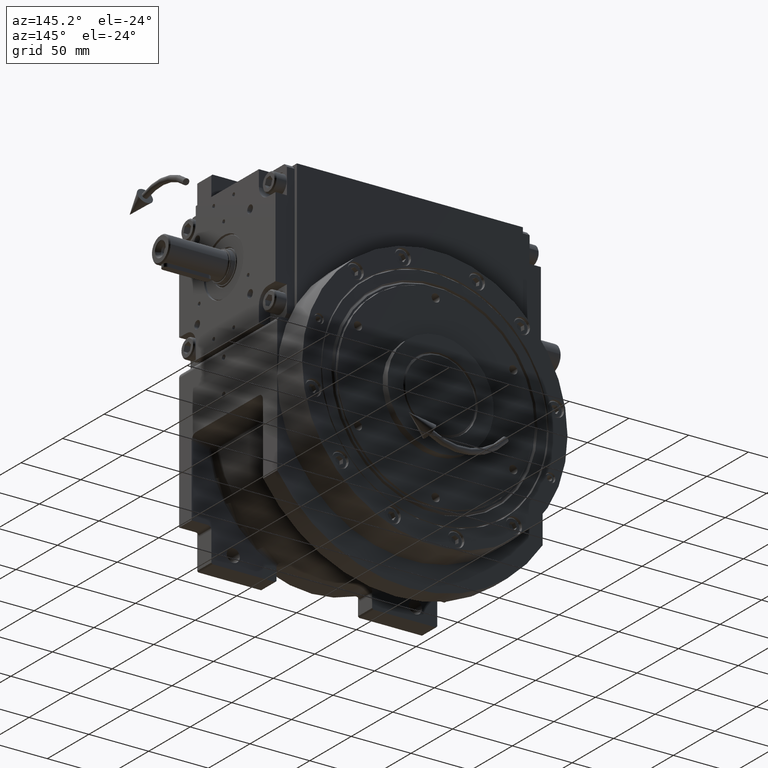
[diagram: clean part render]
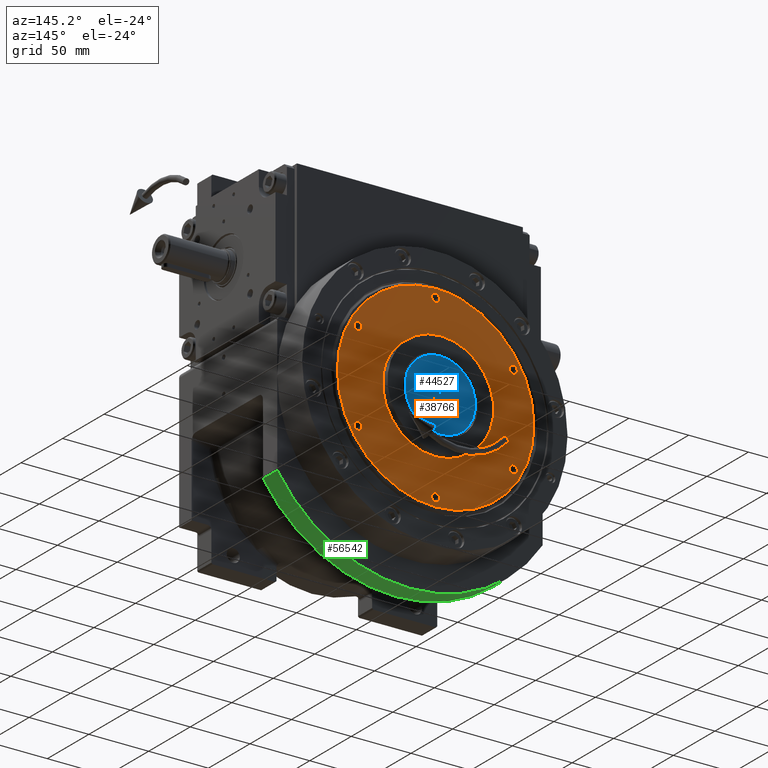
[diagram: same view with three faces highlighted in distinct colors, each labeled with its STEP entity id]
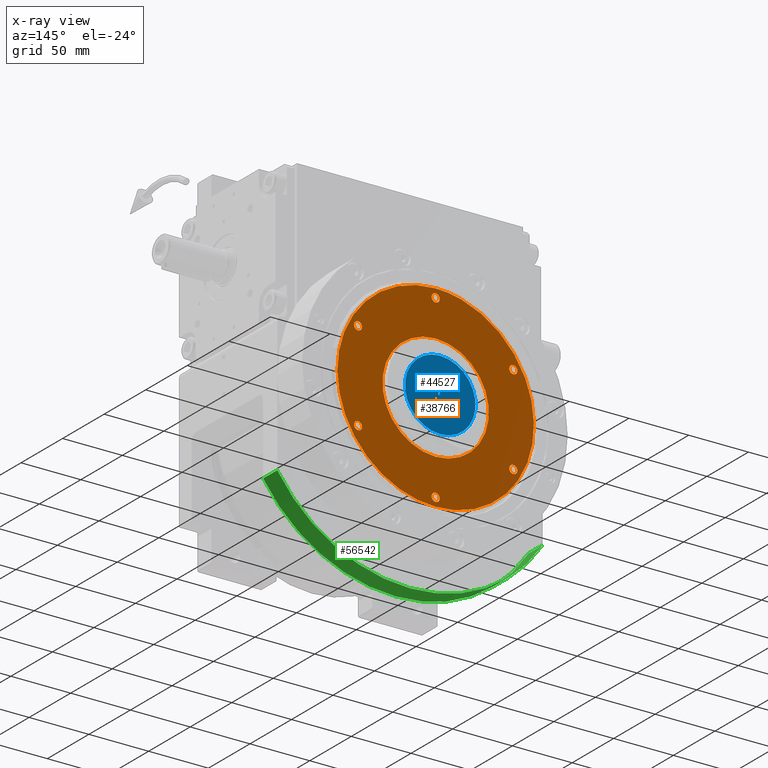
[diagram: x-ray of the same camera — body ghosted, the three highlighted faces saturated]
A machine part, auxiliary view with three faces highlighted in distinct colors.
The next image is the same camera in x-ray (body ghosted, the three faces saturated) — at least one of them is partly hidden behind the body in this view.
Their STEP definitions:

[orange] entity #38766 — the highlighted planar face has unit normal (0, -1, -0).
#227 = DIRECTION ( 'NONE',  ( 4.179663151529968100E-15, 1.000000000000000000, 2.089831575764994700E-15 ) ) ;
#392 = CARTESIAN_POINT ( 'NONE',  ( -50.14754556814370545, 110.5000000000000000, -65.33666926840521683 ) ) ;
#407 = CARTESIAN_POINT ( 'NONE',  ( 80.47346500646517597, 110.4999999999999716, 16.69135747300155614 ) ) ;
#607 = CARTESIAN_POINT ( 'NONE',  ( 76.96232867576274828, 110.5000000000000142, -28.95928036596271227 ) ) ;
#712 = CARTESIAN_POINT ( 'NONE',  ( -65.33708734634375048, 110.5000000000000142, -50.14696052069778887 ) ) ;
#748 = CIRCLE ( 'NONE', #46049, 3.400000000000000355 ) ;
#1137 = CARTESIAN_POINT ( 'NONE',  ( 82.18603400874251008, 110.5000015448018047, 1.581323405575299952E-07 ) ) ;
#1389 = CARTESIAN_POINT ( 'NONE',  ( -10.74076764840350862, 110.4999999999999858, -81.65964476131456706 ) ) ;
#1718 = CARTESIAN_POINT ( 'NONE',  ( -80.85914935550086113, 110.5000000000000142, -14.71020086056657838 ) ) ;
#2807 = CARTESIAN_POINT ( 'NONE',  ( -82.18603400874100373, 110.5000015448012078, -1.581323299043351283E-07 ) ) ;
#3126 = CARTESIAN_POINT ( 'NONE',  ( 54.29876972623154785, 110.4999999999999858, 61.92967476324737675 ) ) ;
#3667 = EDGE_CURVE ( 'NONE', #35697, #21078, #27348, .T. ) ;
#4122 = CARTESIAN_POINT ( 'NONE',  ( -50.14684274527402152, 110.5000000000000142, 65.33704237330343290 ) ) ;
#4462 = CARTESIAN_POINT ( 'NONE',  ( 82.18222187922351907, 110.4999999999999858, 5.413844607824314537 ) ) ;
#4571 = EDGE_CURVE ( 'NONE', #8409, #32765, #32207, .T. ) ;
#4673 = CARTESIAN_POINT ( 'NONE',  ( 69.83423930135026581, 110.4999999999999858, -43.41667302301342346 ) ) ;
#4795 = CARTESIAN_POINT ( 'NONE',  ( 78.32095192439939524, 110.4999999999999858, 25.16328900372727162 ) ) ;
#5010 = CARTESIAN_POINT ( 'NONE',  ( 73.74813151264139321, 110.5000000000000000, -36.37479690083411299 ) ) ;
#5601 = CARTESIAN_POINT ( 'NONE',  ( 40.89999999999976410, 110.5000000000000000, 64.95190528383338346 ) ) ;
#5845 = DIRECTION ( 'NONE',  ( -3.197042680585385368E-16, -1.000000000000000000, -2.395852276087259110E-17 ) ) ;
#5936 = DIRECTION ( 'NONE',  ( 1.000000000000000000, 0.000000000000000000, 0.000000000000000000 ) ) ;
#5988 = AXIS2_PLACEMENT_3D ( 'NONE', #31642, #48170, #5936 ) ;
#6076 = CARTESIAN_POINT ( 'NONE',  ( -37.50000000000000000, 110.5000000000000000, -64.95190528383243134 ) ) ;
#6138 = CARTESIAN_POINT ( 'NONE',  ( -81.98533930688320481, 110.5000000000000000, -6.740832071539393233 ) ) ;
#6472 = CARTESIAN_POINT ( 'NONE',  ( -1.048367022895735268E-10, 110.5000000000000142, -82.18603692326404087 ) ) ;
#6526 = ORIENTED_EDGE ( 'NONE', *, *, #17983, .T. ) ;
#6894 = AXIS2_PLACEMENT_3D ( 'NONE', #49811, #18709, #7596 ) ;
#6930 = ORIENTED_EDGE ( 'NONE', *, *, #64091, .F. ) ;
#7315 = VERTEX_POINT ( 'NONE', #52670 ) ;
#7385 = ORIENTED_EDGE ( 'NONE', *, *, #9585, .F. ) ;
#7410 = VERTEX_POINT ( 'NONE', #9002 ) ;
#7426 = AXIS2_PLACEMENT_3D ( 'NONE', #32186, #12215, #32856 ) ;
#7596 = DIRECTION ( 'NONE',  ( -1.000000000000000000, 0.000000000000000000, -3.069440126904848242E-15 ) ) ;
#7899 = CARTESIAN_POINT ( 'NONE',  ( -82.18603400874100373, 110.5000015448012078, -1.581323299043351283E-07 ) ) ;
#8409 = VERTEX_POINT ( 'NONE', #63809 ) ;
#8713 = CARTESIAN_POINT ( 'NONE',  ( 37.50000000000000000, 110.5000000000000000, -64.95190528383290030 ) ) ;
#8814 = FACE_OUTER_BOUND ( 'NONE', #46058, .T. ) ;
#8881 = CARTESIAN_POINT ( 'NONE',  ( 26.46597584794664115, 110.5000000000000000, 77.99473097346013617 ) ) ;
#9002 = CARTESIAN_POINT ( 'NONE',  ( 78.39999999999999147, 110.5000000000000000, -6.783895636109599569E-27 ) ) ;
#9090 = EDGE_LOOP ( 'NONE', ( #66460, #6930 ) ) ;
#9148 = FACE_BOUND ( 'NONE', #28735, .T. ) ;
#9473 = FACE_BOUND ( 'NONE', #9090, .T. ) ;
#9500 = AXIS2_PLACEMENT_3D ( 'NONE', #30354, #44877, #50604 ) ;
#9585 = EDGE_CURVE ( 'NONE', #7315, #41093, #748, .T. ) ;
#9775 = AXIS2_PLACEMENT_3D ( 'NONE', #6076, #32112, #15540 ) ;
#9787 = AXIS2_PLACEMENT_3D ( 'NONE', #32005, #227, #52617 ) ;
#9877 = CARTESIAN_POINT ( 'NONE',  ( 61.93011393209871329, 110.4999999999999858, 54.29833759267260263 ) ) ;
#10428 = CARTESIAN_POINT ( 'NONE',  ( 78.32115647600109298, 110.4999999999999716, -25.16263082416817198 ) ) ;
#10684 = VERTEX_POINT ( 'NONE', #38300 ) ;
#10754 = CARTESIAN_POINT ( 'NONE',  ( 10.74078281828397508, 110.4999999999999716, -81.65971843768956262 ) ) ;
#10869 = CARTESIAN_POINT ( 'NONE',  ( -21.32673791258707396, 110.5000000000000000, -79.55386997823406148 ) ) ;
#11095 = CARTESIAN_POINT ( 'NONE',  ( 5.396965314102869726, 110.4999999999999858, -82.18599046470633596 ) ) ;
#11332 = CIRCLE ( 'NONE', #27569, 3.400000000000000355 ) ;
#11861 = CARTESIAN_POINT ( 'NONE',  ( -80.73621674438206242, 110.5000000000000000, -15.37038518178290758 ) ) ;
#12215 = DIRECTION ( 'NONE',  ( 0.000000000000000000, 1.000000000000000000, -2.089831575765000222E-15 ) ) ;
#12945 = CARTESIAN_POINT ( 'NONE',  ( -81.41049721478043466, 110.4999999999999858, 11.40046640563004487 ) ) ;
#13240 = ORIENTED_EDGE ( 'NONE', *, *, #20654, .F. ) ;
#13278 = CARTESIAN_POINT ( 'NONE',  ( -41.17372798125234112, 110.5000000000000142, 71.33306199257258129 ) ) ;
#13599 = CARTESIAN_POINT ( 'NONE',  ( -73.86467355760834153, 110.5000000000000142, 36.43724814399683254 ) ) ;
#13927 = CARTESIAN_POINT ( 'NONE',  ( 21.32597268393185175, 110.4999999999999858, 79.55402177641883554 ) ) ;
#14206 = PLANE ( 'NONE',  #28075 ) ;
#14274 = CARTESIAN_POINT ( 'NONE',  ( -80.08037051196102141, 110.5000000000000142, 18.67829002333699506 ) ) ;
#14752 = CARTESIAN_POINT ( 'NONE',  ( -1.048367022895735268E-10, 110.5000000000000142, -82.18603692326404087 ) ) ;
#14808 = CARTESIAN_POINT ( 'NONE',  ( 50.14771722367689222, 110.4999999999999716, -65.33645767331709919 ) ) ;
#15173 = CIRCLE ( 'NONE', #9775, 3.400000000000000355 ) ;
#15283 = CARTESIAN_POINT ( 'NONE',  ( 82.18603400874251008, 110.5000015448018047, 1.581323405575299952E-07 ) ) ;
#15487 = CARTESIAN_POINT ( 'NONE',  ( 21.32671897775462355, 110.5000000000000142, -79.55379426815670740 ) ) ;
#15540 = DIRECTION ( 'NONE',  ( -1.000000000000000000, 4.081702296416015997E-15, 0.000000000000000000 ) ) ;
#15881 = DIRECTION ( 'NONE',  ( -1.000000000000000000, 0.000000000000000000, -1.502066445081090976E-15 ) ) ;
#15924 = CARTESIAN_POINT ( 'NONE',  ( -41.17304319471159602, 110.5000000000000426, -71.33342587732616380 ) ) ;
#16516 = CARTESIAN_POINT ( 'NONE',  ( 34.10000000000000142, 110.5000000000000000, -64.95190528383290030 ) ) ;
#16597 = CARTESIAN_POINT ( 'NONE',  ( -5.396965920549728679, 110.4999999999999858, -82.18606886526323763 ) ) ;
#16630 = ORIENTED_EDGE ( 'NONE', *, *, #37533, .F. ) ;
#16868 = AXIS2_PLACEMENT_3D ( 'NONE', #25908, #56666, #51586 ) ;
#17405 = AXIS2_PLACEMENT_3D ( 'NONE', #8713, #43865, #44190 ) ;
#17819 = CARTESIAN_POINT ( 'NONE',  ( 37.49999999999976552, 110.5000000000000000, 64.95190528383290030 ) ) ;
#17983 = EDGE_CURVE ( 'NONE', #21078, #20338, #54039, .T. ) ;
#18049 = DIRECTION ( 'NONE',  ( 1.000000000000000000, -6.244223985518314942E-16, 2.023907469293703493E-16 ) ) ;
#18334 = CARTESIAN_POINT ( 'NONE',  ( -77.86821339563776689, 110.5000000000000426, 26.42818210147167335 ) ) ;
#18574 = AXIS2_PLACEMENT_3D ( 'NONE', #66683, #5845, #21373 ) ;
#18674 = CARTESIAN_POINT ( 'NONE',  ( 10.74154536275718641, 110.5000000000000000, 81.65949047945815664 ) ) ;
#18709 = DIRECTION ( 'NONE',  ( 0.000000000000000000, 1.000000000000000000, 1.540743955586159449E-33 ) ) ;
#19004 = CARTESIAN_POINT ( 'NONE',  ( -26.46591210633614466, 110.5000000000000426, 77.99484015378844504 ) ) ;
#19211 = CARTESIAN_POINT ( 'NONE',  ( 82.18603400874251008, 110.5000015448018047, 1.581323405575299952E-07 ) ) ;
#19826 = CIRCLE ( 'NONE', #6894, 3.400000000000000355 ) ;
#19883 = CARTESIAN_POINT ( 'NONE',  ( 61.93063791654595462, 110.5000000000000000, -54.29769947772633287 ) ) ;
#20338 = VERTEX_POINT ( 'NONE', #14752 ) ;
#20654 = EDGE_CURVE ( 'NONE', #21185, #28890, #38947, .T. ) ;
#21013 = CARTESIAN_POINT ( 'NONE',  ( -81.41054315470101699, 110.5000000000000142, -11.40073033654709000 ) ) ;
#21078 = VERTEX_POINT ( 'NONE', #1137 ) ;
#21185 = VERTEX_POINT ( 'NONE', #52538 ) ;
#21373 = DIRECTION ( 'NONE',  ( 1.000000000000000000, -3.122111992759157471E-16, 2.823168139440055505E-16 ) ) ;
#21966 = CIRCLE ( 'NONE', #39244, 44.45000000000000284 ) ;
#22142 = DIRECTION ( 'NONE',  ( 6.394085361170760874E-16, 1.000000000000000000, -2.395852276087253871E-17 ) ) ;
#22472 = CARTESIAN_POINT ( 'NONE',  ( 1.776356839400252042E-14, 110.5000000000000000, -3.552713678800499352E-15 ) ) ;
#23975 = AXIS2_PLACEMENT_3D ( 'NONE', #62343, #31247, #33490 ) ;
#24444 = CARTESIAN_POINT ( 'NONE',  ( -81.98529366466023305, 110.4999999999999716, 6.740478288382624861 ) ) ;
#24757 = CARTESIAN_POINT ( 'NONE',  ( 81.65593245021590008, 110.4999999999999716, 10.75709170780790025 ) ) ;
#25031 = ORIENTED_EDGE ( 'NONE', *, *, #55987, .F. ) ;
#25310 = EDGE_CURVE ( 'NONE', #54608, #35454, #19826, .T. ) ;
#25711 = DIRECTION ( 'NONE',  ( 0.000000000000000000, 1.000000000000000000, 1.540743955586159449E-33 ) ) ;
#25908 = CARTESIAN_POINT ( 'NONE',  ( 75.00000000000000000, 110.5000000000000000, -4.884981308350821306E-15 ) ) ;
#26126 = CARTESIAN_POINT ( 'NONE',  ( 80.33384769217845189, 110.4999999999999858, 17.35112966435321979 ) ) ;
#26444 = CARTESIAN_POINT ( 'NONE',  ( -73.86436510405066258, 110.5000000000000000, -36.43783581387070569 ) ) ;
#26914 = B_SPLINE_CURVE_WITH_KNOTS ( 'NONE', 3,
 ( #6472, #16597, #1389, #10869, #32505, #36903, #15924, #392, #37562, #52452, #712, #31517, #26444, #57858, #37233, #27095, #57183, #58195, #11861, #1718, #47699, #21013, #6138, #62269, #62588 ),
 .UNSPECIFIED., .F., .F.,
 ( 4, 2, 2, 2, 2, 2, 2, 2, 2, 2, 1, 1, 1, 4 ),
 ( 0.4999999719176850821, 0.5624999754279744746, 0.6249999789382639781, 0.6874999824485534816, 0.7499999859588428741, 0.8124999894691323776, 0.8749999929794217701, 0.9062499947345665774, 0.9374999964897112736, 0.9414062467091042219, 0.9453124969284972812, 0.9531249973672833997, 0.9687499982448555258, 1.000000000000000000 ),
 .UNSPECIFIED. ) ;
#27095 = CARTESIAN_POINT ( 'NONE',  ( -79.42706700825716837, 110.5000000000000000, -21.28825086087052298 ) ) ;
#27348 = B_SPLINE_CURVE_WITH_KNOTS ( 'NONE', 3,
 ( #7899, #55523, #24444, #12945, #50438, #44694, #60611, #29190, #14274, #65343, #18334, #65010, #13599, #54862, #59626, #55203, #28526, #4122, #13278, #43702, #19004, #39633, #64350, #60278, #33904, #18674, #13927, #8881, #28852, #29526, #49432, #3126, #9877, #45357, #30510, #45696, #41633, #35229, #30855, #4795, #60940, #46026, #26126, #407, #56522, #24757, #4462, #15283 ),
 .UNSPECIFIED., .F., .F.,
 ( 4, 1, 1, 1, 2, 2, 2, 2, 2, 2, 2, 2, 2, 2, 2, 2, 2, 2, 2, 2, 2, 1, 1, 1, 2, 2, 4 ),
 ( 0.000000000000000000, 0.03124999999999995837, 0.04687499999999995143, 0.05468749999999994449, 0.05859374999999993755, 0.06249999999999991673, 0.09374999999999993061, 0.1249999999999999445, 0.1874999999999999722, 0.2500000000000000000, 0.3125000000000000000, 0.3750000000000000555, 0.4375000000000000555, 0.5000000000000001110, 0.5625000000000001110, 0.6250000000000001110, 0.6875000000000002220, 0.7500000000000002220, 0.8125000000000001110, 0.8437500000000001110, 0.8750000000000000000, 0.9062500000000000000, 0.9218750000000000000, 0.9296875000000000000, 0.9335937500000000000, 0.9375000000000000000, 1.000000000000000000 ),
 .UNSPECIFIED. ) ;
#27402 = VERTEX_POINT ( 'NONE', #39285 ) ;
#27485 = EDGE_LOOP ( 'NONE', ( #7385, #41195 ) ) ;
#27569 = AXIS2_PLACEMENT_3D ( 'NONE', #27700, #64192, #63865 ) ;
#27700 = CARTESIAN_POINT ( 'NONE',  ( -75.00000000000000000, 110.5000000000000000, 7.993605777294251379E-15 ) ) ;
#27983 = DIRECTION ( 'NONE',  ( 0.000000000000000000, 1.000000000000000000, -2.089831575764989967E-15 ) ) ;
#28075 = AXIS2_PLACEMENT_3D ( 'NONE', #65930, #64945, #55129 ) ;
#28222 = CARTESIAN_POINT ( 'NONE',  ( -78.39999999999999147, 110.5000000000000000, 2.697109197274935919E-15 ) ) ;
#28526 = CARTESIAN_POINT ( 'NONE',  ( -54.29909472632881773, 110.5000000000000000, 61.92944677904171868 ) ) ;
#28735 = EDGE_LOOP ( 'NONE', ( #49809, #65829 ) ) ;
#28852 = CARTESIAN_POINT ( 'NONE',  ( 36.43673274471090195, 110.5000000000000142, 73.86503631034787531 ) ) ;
#28890 = VERTEX_POINT ( 'NONE', #50084 ) ;
#29190 = CARTESIAN_POINT ( 'NONE',  ( -80.67297687466572143, 110.5000000000000284, 15.69867770626846770 ) ) ;
#29526 = CARTESIAN_POINT ( 'NONE',  ( 41.17346744512528289, 110.4999999999999858, 71.33314274904846286 ) ) ;
#29562 = EDGE_LOOP ( 'NONE', ( #13240, #16630 ) ) ;
#29746 = AXIS2_PLACEMENT_3D ( 'NONE', #46970, #25711, #15881 ) ;
#29788 = FACE_BOUND ( 'NONE', #29562, .T. ) ;
#30201 = ORIENTED_EDGE ( 'NONE', *, *, #3667, .T. ) ;
#30354 = CARTESIAN_POINT ( 'NONE',  ( 37.50000000000000000, 110.5000000000000000, -64.95190528383290030 ) ) ;
#30510 = CARTESIAN_POINT ( 'NONE',  ( 69.83408181518969116, 110.4999999999999858, 43.41695845024568001 ) ) ;
#30729 = CARTESIAN_POINT ( 'NONE',  ( 26.46527515611211356, 110.5000000000000284, -77.99510436064866781 ) ) ;
#30855 = CARTESIAN_POINT ( 'NONE',  ( 76.96221393906922970, 110.4999999999999716, 28.95965176232081362 ) ) ;
#31247 = DIRECTION ( 'NONE',  ( 0.000000000000000000, 1.000000000000000000, -2.089831575764980500E-15 ) ) ;
#31517 = CARTESIAN_POINT ( 'NONE',  ( -71.33364469616624604, 110.5000000000000142, -41.17277949763079903 ) ) ;
#31642 = CARTESIAN_POINT ( 'NONE',  ( 37.49999999999976552, 110.5000000000000000, 64.95190528383290030 ) ) ;
#32005 = CARTESIAN_POINT ( 'NONE',  ( -37.50000000000023448, 110.5000000000000000, 64.95190528383338346 ) ) ;
#32112 = DIRECTION ( 'NONE',  ( 4.179663151529978356E-15, 1.000000000000000000, 2.089831575764979711E-15 ) ) ;
#32186 = CARTESIAN_POINT ( 'NONE',  ( -37.50000000000023448, 110.5000000000000000, 64.95190528383338346 ) ) ;
#32195 = EDGE_CURVE ( 'NONE', #66756, #27402, #52064, .T. ) ;
#32207 = CIRCLE ( 'NONE', #9500, 3.400000000000000355 ) ;
#32505 = CARTESIAN_POINT ( 'NONE',  ( -26.46516568415016835, 110.5000000000000284, -77.99506614383170700 ) ) ;
#32765 = VERTEX_POINT ( 'NONE', #16516 ) ;
#32856 = DIRECTION ( 'NONE',  ( 1.000000000000000000, 0.000000000000000000, 0.000000000000000000 ) ) ;
#33490 = DIRECTION ( 'NONE',  ( 1.000000000000000000, 0.000000000000000000, 0.000000000000000000 ) ) ;
#33904 = CARTESIAN_POINT ( 'NONE',  ( 5.396190313849494657, 110.5000000000000000, 82.18606838660620895 ) ) ;
#34258 = EDGE_LOOP ( 'NONE', ( #46753, #48925 ) ) ;
#34877 = EDGE_CURVE ( 'NONE', #32765, #8409, #64944, .T. ) ;
#34987 = CARTESIAN_POINT ( 'NONE',  ( -71.59999999999999432, 110.5000000000000000, 3.061616997868260769E-15 ) ) ;
#35113 = CARTESIAN_POINT ( 'NONE',  ( 80.54158547785669953, 110.4999999999999858, -16.35931090249731312 ) ) ;
#35229 = CARTESIAN_POINT ( 'NONE',  ( 74.89794069821219580, 110.5000000000000142, 33.94279222128608353 ) ) ;
#35454 = VERTEX_POINT ( 'NONE', #34987 ) ;
#35697 = VERTEX_POINT ( 'NONE', #2807 ) ;
#36454 = CARTESIAN_POINT ( 'NONE',  ( 65.33763228115991240, 110.4999999999999858, -50.14630245138530995 ) ) ;
#36558 = CIRCLE ( 'NONE', #7426, 3.400000000000000355 ) ;
#36903 = CARTESIAN_POINT ( 'NONE',  ( -36.43753282681043260, 110.4999999999999858, -73.86470531561997177 ) ) ;
#37233 = CARTESIAN_POINT ( 'NONE',  ( -77.86803878220746356, 110.5000000000000284, -26.42874468702228441 ) ) ;
#37256 = VERTEX_POINT ( 'NONE', #41634 ) ;
#37533 = EDGE_CURVE ( 'NONE', #28890, #21185, #36558, .T. ) ;
#37540 = ORIENTED_EDGE ( 'NONE', *, *, #66085, .T. ) ;
#37562 = CARTESIAN_POINT ( 'NONE',  ( -54.29850716401767841, 110.5000000000000000, -61.92993699073153380 ) ) ;
#38300 = CARTESIAN_POINT ( 'NONE',  ( 44.44999999999976836, 110.5000000000000000, 5.443555022212564484E-15 ) ) ;
#38498 = CARTESIAN_POINT ( 'NONE',  ( -34.10000000000000142, 110.5000000000000000, -64.95190528383243134 ) ) ;
#38766 = ADVANCED_FACE ( 'NONE', ( #8814, #44289, #44961, #9148, #29788, #60876, #9473, #49702 ), #14206, .F. ) ;
#38947 = CIRCLE ( 'NONE', #9787, 3.400000000000000355 ) ;
#39244 = AXIS2_PLACEMENT_3D ( 'NONE', #22472, #22142, #18049 ) ;
#39285 = CARTESIAN_POINT ( 'NONE',  ( -40.89999999999999858, 110.5000000000000000, -64.95190528383290030 ) ) ;
#39633 = CARTESIAN_POINT ( 'NONE',  ( -21.32594694526337165, 110.5000000000000000, 79.55394827524149548 ) ) ;
#39843 = CARTESIAN_POINT ( 'NONE',  ( 82.18217394222040184, 110.4999999999999716, -5.413439777049708468 ) ) ;
#40514 = CARTESIAN_POINT ( 'NONE',  ( 41.17286106389226319, 110.4999999999999858, -71.33364164011456410 ) ) ;
#40838 = CARTESIAN_POINT ( 'NONE',  ( 71.21656534630055546, 110.4999999999999858, -41.11101387479465075 ) ) ;
#41093 = VERTEX_POINT ( 'NONE', #5601 ) ;
#41183 = CARTESIAN_POINT ( 'NONE',  ( 79.57472203535758126, 110.4999999999999858, -20.63044246711258722 ) ) ;
#41195 = ORIENTED_EDGE ( 'NONE', *, *, #41218, .F. ) ;
#41218 = EDGE_CURVE ( 'NONE', #41093, #7315, #56707, .T. ) ;
#41633 = CARTESIAN_POINT ( 'NONE',  ( 73.74790136345738745, 110.5000000000000000, 36.37523474268279244 ) ) ;
#41634 = CARTESIAN_POINT ( 'NONE',  ( 71.59999999999999432, 110.5000000000000000, -3.645078006001087585E-16 ) ) ;
#42697 = EDGE_CURVE ( 'NONE', #35454, #54608, #11332, .T. ) ;
#43702 = CARTESIAN_POINT ( 'NONE',  ( -36.43677092628834657, 110.5000000000000000, 73.86494086435298811 ) ) ;
#43789 = EDGE_CURVE ( 'NONE', #27402, #66756, #15173, .T. ) ;
#43865 = DIRECTION ( 'NONE',  ( 0.000000000000000000, 1.000000000000000000, -2.089831575764995489E-15 ) ) ;
#43908 = CARTESIAN_POINT ( 'NONE',  ( 80.33387830201940005, 110.4999999999999716, -17.35095847086826737 ) ) ;
#44190 = DIRECTION ( 'NONE',  ( -1.000000000000000000, 0.000000000000000000, 0.000000000000000000 ) ) ;
#44289 = FACE_BOUND ( 'NONE', #62623, .T. ) ;
#44694 = CARTESIAN_POINT ( 'NONE',  ( -80.85911346599473859, 110.4999999999999858, 14.71011054370710980 ) ) ;
#44877 = DIRECTION ( 'NONE',  ( 4.179663151529978356E-15, 1.000000000000000000, 2.089831575764989967E-15 ) ) ;
#44961 = FACE_BOUND ( 'NONE', #34258, .T. ) ;
#45357 = CARTESIAN_POINT ( 'NONE',  ( 65.33793898011035139, 110.4999999999999716, 50.14568632257584824 ) ) ;
#45696 = CARTESIAN_POINT ( 'NONE',  ( 71.21633143618713291, 110.5000000000000000, 41.11144999242241482 ) ) ;
#46026 = CARTESIAN_POINT ( 'NONE',  ( 80.11850087870728032, 110.4999999999999574, 18.33894396968164386 ) ) ;
#46049 = AXIS2_PLACEMENT_3D ( 'NONE', #17819, #27983, #63157 ) ;
#46058 = EDGE_LOOP ( 'NONE', ( #30201, #6526, #37540 ) ) ;
#46753 = ORIENTED_EDGE ( 'NONE', *, *, #43789, .F. ) ;
#46970 = CARTESIAN_POINT ( 'NONE',  ( 75.00000000000000000, 110.5000000000000000, 5.107025913275571780E-15 ) ) ;
#47699 = CARTESIAN_POINT ( 'NONE',  ( -81.03742544091511490, 110.5000000000000284, -13.71909706410294660 ) ) ;
#47733 = CIRCLE ( 'NONE', #18574, 44.45000000000000284 ) ;
#48170 = DIRECTION ( 'NONE',  ( 8.381647117973250432E-31, 1.000000000000000000, 2.089831575764994700E-15 ) ) ;
#48925 = ORIENTED_EDGE ( 'NONE', *, *, #32195, .F. ) ;
#49432 = CARTESIAN_POINT ( 'NONE',  ( 50.14712887847355915, 110.4999999999999716, 65.33694734459872677 ) ) ;
#49702 = FACE_BOUND ( 'NONE', #53780, .T. ) ;
#49809 = ORIENTED_EDGE ( 'NONE', *, *, #25310, .F. ) ;
#49811 = CARTESIAN_POINT ( 'NONE',  ( -75.00000000000000000, 110.5000000000000000, 1.043609643146962259E-14 ) ) ;
#50084 = CARTESIAN_POINT ( 'NONE',  ( -34.10000000000023590, 110.5000000000000000, 64.95190528383338346 ) ) ;
#50438 = CARTESIAN_POINT ( 'NONE',  ( -81.03738559922308582, 110.5000000000000284, 13.71894467123656725 ) ) ;
#50604 = DIRECTION ( 'NONE',  ( 1.000000000000000000, -4.081702296416015997E-15, 0.000000000000000000 ) ) ;
#51328 = CARTESIAN_POINT ( 'NONE',  ( -1.048367022895735268E-10, 110.5000000000000142, -82.18603692326404087 ) ) ;
#51586 = DIRECTION ( 'NONE',  ( 1.000000000000000000, 0.000000000000000000, 1.436759208338440266E-15 ) ) ;
#52064 = CIRCLE ( 'NONE', #23975, 3.400000000000000355 ) ;
#52452 = CARTESIAN_POINT ( 'NONE',  ( -61.93037135062296272, 110.5000000000000142, -54.29808050887305626 ) ) ;
#52497 = CIRCLE ( 'NONE', #16868, 3.400000000000000355 ) ;
#52538 = CARTESIAN_POINT ( 'NONE',  ( -40.90000000000023306, 110.5000000000000000, 64.95190528383290030 ) ) ;
#52617 = DIRECTION ( 'NONE',  ( -1.000000000000000000, 4.081702296416015997E-15, 0.000000000000000000 ) ) ;
#52670 = CARTESIAN_POINT ( 'NONE',  ( 34.09999999999975984, 110.5000000000000000, 64.95190528383290030 ) ) ;
#53237 = ORIENTED_EDGE ( 'NONE', *, *, #34877, .F. ) ;
#53780 = EDGE_LOOP ( 'NONE', ( #25031, #56827 ) ) ;
#54039 = B_SPLINE_CURVE_WITH_KNOTS ( 'NONE', 3,
 ( #19211, #39843, #65869, #35113, #55733, #43908, #57423, #41183, #10428, #607, #57073, #5010, #40838, #4673, #36454, #19883, #61157, #14808, #40514, #61828, #30729, #15487, #10754, #11095, #51328 ),
 .UNSPECIFIED., .F., .F.,
 ( 4, 2, 2, 1, 1, 1, 2, 2, 2, 2, 2, 2, 2, 4 ),
 ( 0.000000000000000000, 0.06249999648971088506, 0.06640624627031782579, 0.07031249605092476651, 0.07812499561213863408, 0.09374999473456628596, 0.1249999929794215758, 0.1562499912242768518, 0.1874999894691321833, 0.2499999859588427631, 0.3124999824485532596, 0.3749999789382638671, 0.4374999754279744746, 0.4999999719176850821 ),
 .UNSPECIFIED. ) ;
#54608 = VERTEX_POINT ( 'NONE', #28222 ) ;
#54862 = CARTESIAN_POINT ( 'NONE',  ( -71.33312151958747904, 110.5000000000000142, 41.17344376063476830 ) ) ;
#54927 = EDGE_CURVE ( 'NONE', #10684, #56099, #47733, .T. ) ;
#55129 = DIRECTION ( 'NONE',  ( -1.000000000000000000, 1.836909530733564901E-16, 0.000000000000000000 ) ) ;
#55203 = CARTESIAN_POINT ( 'NONE',  ( -61.92976105365575279, 110.5000000000000142, 54.29857669836266609 ) ) ;
#55523 = CARTESIAN_POINT ( 'NONE',  ( -82.18410185386885303, 110.4999999999999858, 2.706720040397336824 ) ) ;
#55733 = CARTESIAN_POINT ( 'NONE',  ( 80.47346700800821395, 110.4999999999999858, -16.69126919466643955 ) ) ;
#55987 = EDGE_CURVE ( 'NONE', #10684, #56099, #21966, .T. ) ;
#56099 = VERTEX_POINT ( 'NONE', #59992 ) ;
#56522 = CARTESIAN_POINT ( 'NONE',  ( 80.54161329299185468, 110.4999999999999716, 16.35928189945978062 ) ) ;
#56666 = DIRECTION ( 'NONE',  ( 0.000000000000000000, 1.000000000000000000, 1.540743955586159449E-33 ) ) ;
#56707 = CIRCLE ( 'NONE', #5988, 3.400000000000000355 ) ;
#56827 = ORIENTED_EDGE ( 'NONE', *, *, #54927, .T. ) ;
#57073 = CARTESIAN_POINT ( 'NONE',  ( 74.89780891093313642, 110.5000000000000284, -33.94318345663835856 ) ) ;
#57183 = CARTESIAN_POINT ( 'NONE',  ( -80.08026981023135704, 110.5000000000000142, -18.67866566709026444 ) ) ;
#57423 = CARTESIAN_POINT ( 'NONE',  ( 80.11857142980544211, 110.5000000000000142, -18.33865731567764001 ) ) ;
#57742 = ORIENTED_EDGE ( 'NONE', *, *, #4571, .F. ) ;
#57858 = CARTESIAN_POINT ( 'NONE',  ( -76.96293238175633178, 110.5000000000000284, -28.95791760141081284 ) ) ;
#58195 = CARTESIAN_POINT ( 'NONE',  ( -80.67302273752034125, 110.5000000000000284, -15.69862675829507204 ) ) ;
#58901 = CIRCLE ( 'NONE', #29746, 3.400000000000000355 ) ;
#59626 = CARTESIAN_POINT ( 'NONE',  ( -65.33761603904908100, 110.5000000000000426, 50.14632643991264871 ) ) ;
#59992 = CARTESIAN_POINT ( 'NONE',  ( -44.45000000000023732, 110.5000000000000000, -7.258073362940638580E-15 ) ) ;
#60079 = EDGE_CURVE ( 'NONE', #37256, #7410, #58901, .T. ) ;
#60278 = CARTESIAN_POINT ( 'NONE',  ( -5.396175763947936410, 110.5000000000000000, 82.18599094346397749 ) ) ;
#60611 = CARTESIAN_POINT ( 'NONE',  ( -80.73618378714648713, 110.5000000000000142, 15.37033942092474881 ) ) ;
#60876 = FACE_BOUND ( 'NONE', #27485, .T. ) ;
#60940 = CARTESIAN_POINT ( 'NONE',  ( 79.57457908632085264, 110.4999999999999858, 20.63093614355465988 ) ) ;
#61157 = CARTESIAN_POINT ( 'NONE',  ( 54.29822300750021924, 110.4999999999999432, -61.93031885547897986 ) ) ;
#61828 = CARTESIAN_POINT ( 'NONE',  ( 36.43741795798403871, 110.5000000000000142, -73.86467248177763167 ) ) ;
#62269 = CARTESIAN_POINT ( 'NONE',  ( -82.18412582237159825, 110.5000000000000426, -2.706922455996795041 ) ) ;
#62343 = CARTESIAN_POINT ( 'NONE',  ( -37.50000000000000000, 110.5000000000000000, -64.95190528383243134 ) ) ;
#62588 = CARTESIAN_POINT ( 'NONE',  ( -82.18603400874100373, 110.5000015448012078, -1.581323299043351283E-07 ) ) ;
#62623 = EDGE_LOOP ( 'NONE', ( #53237, #57742 ) ) ;
#63157 = DIRECTION ( 'NONE',  ( -1.000000000000000000, 0.000000000000000000, 0.000000000000000000 ) ) ;
#63809 = CARTESIAN_POINT ( 'NONE',  ( 40.89999999999999858, 110.5000000000000000, -64.95190528383243134 ) ) ;
#63865 = DIRECTION ( 'NONE',  ( 1.000000000000000000, 0.000000000000000000, -2.351060522735629490E-15 ) ) ;
#64091 = EDGE_CURVE ( 'NONE', #7410, #37256, #52497, .T. ) ;
#64192 = DIRECTION ( 'NONE',  ( 0.000000000000000000, 1.000000000000000000, 1.540743955586159449E-33 ) ) ;
#64350 = CARTESIAN_POINT ( 'NONE',  ( -10.74154236511540184, 110.5000000000000000, 81.65956691445188653 ) ) ;
#64944 = CIRCLE ( 'NONE', #17405, 3.400000000000000355 ) ;
#64945 = DIRECTION ( 'NONE',  ( -1.836909530733564901E-16, -1.000000000000000000, -4.632011979606505031E-33 ) ) ;
#65010 = CARTESIAN_POINT ( 'NONE',  ( -76.96276536764067089, 110.5000000000000142, 28.95822631422415583 ) ) ;
#65343 = CARTESIAN_POINT ( 'NONE',  ( -79.42723460417914794, 110.5000000000000142, 21.28768615169941825 ) ) ;
#65829 = ORIENTED_EDGE ( 'NONE', *, *, #42697, .F. ) ;
#65869 = CARTESIAN_POINT ( 'NONE',  ( 81.65587465362948194, 110.4999999999999432, -10.75668806138983946 ) ) ;
#65930 = CARTESIAN_POINT ( 'NONE',  ( 2.030702568688729503E-14, 110.5000000000000000, 0.000000000000000000 ) ) ;
#66085 = EDGE_CURVE ( 'NONE', #20338, #35697, #26914, .T. ) ;
#66460 = ORIENTED_EDGE ( 'NONE', *, *, #60079, .F. ) ;
#66683 = CARTESIAN_POINT ( 'NONE',  ( 2.842170943040403268E-14, 110.5000000000000000, -7.105427357600998703E-15 ) ) ;
#66756 = VERTEX_POINT ( 'NONE', #38498 ) ;

[blue] entity #44527 — the highlighted planar face has unit normal (-0, -1, 0).
#2598 = VERTEX_POINT ( 'NONE', #35324 ) ;
#3003 = CARTESIAN_POINT ( 'NONE',  ( 29.50000000000000000, 10.00000000000000888, 2.747769244453179385E-16 ) ) ;
#3008 = AXIS2_PLACEMENT_3D ( 'NONE', #16408, #43086, #38056 ) ;
#12401 = CIRCLE ( 'NONE', #41535, 29.50000000000000000 ) ;
#13705 = CARTESIAN_POINT ( 'NONE',  ( 2.203923452243662307E-18, 9.999999999999994671, 3.851859888774471706E-31 ) ) ;
#15982 = CIRCLE ( 'NONE', #3008, 29.50000000000000000 ) ;
#16408 = CARTESIAN_POINT ( 'NONE',  ( 1.776356839400245929E-15, 9.999999999999994671, -1.776356839400250070E-15 ) ) ;
#24211 = FACE_OUTER_BOUND ( 'NONE', #26562, .T. ) ;
#26562 = EDGE_LOOP ( 'NONE', ( #52271, #26696 ) ) ;
#26696 = ORIENTED_EDGE ( 'NONE', *, *, #40669, .T. ) ;
#26716 = EDGE_CURVE ( 'NONE', #55734, #2598, #15982, .T. ) ;
#29626 = DIRECTION ( 'NONE',  ( -1.836970198721012924E-16, -1.000000000000000000, 5.021862329989743761E-32 ) ) ;
#30274 = DIRECTION ( 'NONE',  ( -1.000000000000000000, 1.836970198721012924E-16, 2.949029909160572061E-17 ) ) ;
#35001 = PLANE ( 'NONE',  #60604 ) ;
#35324 = CARTESIAN_POINT ( 'NONE',  ( -29.50000000000023448, 9.999999999999536371, -2.110467855022791915E-15 ) ) ;
#38056 = DIRECTION ( 'NONE',  ( 1.000000000000000000, -1.764125568789973300E-16, 3.035766082959412415E-17 ) ) ;
#40669 = EDGE_CURVE ( 'NONE', #55734, #2598, #12401, .T. ) ;
#41535 = AXIS2_PLACEMENT_3D ( 'NONE', #61144, #52330, #56040 ) ;
#43086 = DIRECTION ( 'NONE',  ( -1.806464582440948817E-16, -1.000000000000000000, -2.946672814912493298E-32 ) ) ;
#44527 = ADVANCED_FACE ( 'NONE', ( #24211 ), #35001, .F. ) ;
#52271 = ORIENTED_EDGE ( 'NONE', *, *, #26716, .F. ) ;
#52330 = DIRECTION ( 'NONE',  ( 1.806464582440948817E-16, 1.000000000000000000, 2.946672814912493298E-32 ) ) ;
#55734 = VERTEX_POINT ( 'NONE', #3003 ) ;
#56040 = DIRECTION ( 'NONE',  ( 1.000000000000000000, -1.764125568789973300E-16, -8.933825901280556536E-17 ) ) ;
#60604 = AXIS2_PLACEMENT_3D ( 'NONE', #13705, #29626, #30274 ) ;
#61144 = CARTESIAN_POINT ( 'NONE',  ( 1.776356839400245929E-15, 9.999999999999994671, 1.776356839400249676E-15 ) ) ;

[green] entity #56542 — the highlighted cylindrical surface (partial cylindrical patch) has radius 132 mm, axis along (0, -1, 0).
#97 = CIRCLE ( 'NONE', #44330, 132.0000000000000853 ) ;
#1499 = AXIS2_PLACEMENT_3D ( 'NONE', #50363, #40556, #4044 ) ;
#2135 = VECTOR ( 'NONE', #46372, 1000.000000000000000 ) ;
#3193 = CARTESIAN_POINT ( 'NONE',  ( 111.0000000000000000, 47.50000000000000000, -71.43528539874399996 ) ) ;
#3240 = DIRECTION ( 'NONE',  ( 0.000000000000000000, 1.000000000000000000, 0.000000000000000000 ) ) ;
#3594 = ORIENTED_EDGE ( 'NONE', *, *, #38679, .T. ) ;
#3739 = ORIENTED_EDGE ( 'NONE', *, *, #19196, .F. ) ;
#4044 = DIRECTION ( 'NONE',  ( 1.000000000000000000, 0.000000000000000000, 0.000000000000000000 ) ) ;
#8119 = CARTESIAN_POINT ( 'NONE',  ( 7.105427357600998703E-15, 64.50000000000000000, 0.000000000000000000 ) ) ;
#9136 = CYLINDRICAL_SURFACE ( 'NONE', #1499, 132.0000000000000000 ) ;
#9415 = VERTEX_POINT ( 'NONE', #11093 ) ;
#11093 = CARTESIAN_POINT ( 'NONE',  ( 111.0000000000000000, 64.50000000000000000, -71.43528539874399996 ) ) ;
#19196 = EDGE_CURVE ( 'NONE', #9415, #24157, #97, .T. ) ;
#19927 = FACE_OUTER_BOUND ( 'NONE', #27658, .T. ) ;
#20072 = VERTEX_POINT ( 'NONE', #3193 ) ;
#20351 = CARTESIAN_POINT ( 'NONE',  ( -111.0000000000000000, 47.50000000000000000, -71.43528539874399996 ) ) ;
#24157 = VERTEX_POINT ( 'NONE', #40309 ) ;
#24232 = ORIENTED_EDGE ( 'NONE', *, *, #54353, .T. ) ;
#25786 = LINE ( 'NONE', #20351, #2135 ) ;
#27658 = EDGE_LOOP ( 'NONE', ( #3594, #3739, #39046, #24232 ) ) ;
#28764 = CARTESIAN_POINT ( 'NONE',  ( 111.0000000000000000, 47.50000000000000000, -71.43528539874399996 ) ) ;
#29861 = VECTOR ( 'NONE', #49345, 1000.000000000000000 ) ;
#34100 = VERTEX_POINT ( 'NONE', #34556 ) ;
#34145 = LINE ( 'NONE', #28764, #29861 ) ;
#34556 = CARTESIAN_POINT ( 'NONE',  ( -111.0000000000000000, 47.50000000000000000, -71.43528539874399996 ) ) ;
#34798 = DIRECTION ( 'NONE',  ( 0.8409090909090906063, 0.000000000000000000, -0.5411764045359397368 ) ) ;
#38679 = EDGE_CURVE ( 'NONE', #34100, #24157, #25786, .T. ) ;
#39046 = ORIENTED_EDGE ( 'NONE', *, *, #66310, .F. ) ;
#40309 = CARTESIAN_POINT ( 'NONE',  ( -111.0000000000000000, 64.50000000000000000, -71.43528539874399996 ) ) ;
#40556 = DIRECTION ( 'NONE',  ( 0.000000000000000000, -1.000000000000000000, 0.000000000000000000 ) ) ;
#44330 = AXIS2_PLACEMENT_3D ( 'NONE', #8119, #64901, #34798 ) ;
#44807 = DIRECTION ( 'NONE',  ( 0.8409090909090902732, 0.000000000000000000, -0.5411764045359401809 ) ) ;
#45133 = CARTESIAN_POINT ( 'NONE',  ( 0.000000000000000000, 47.50000000000000000, 4.263256414560599853E-14 ) ) ;
#46372 = DIRECTION ( 'NONE',  ( 0.000000000000000000, 1.000000000000000000, 0.000000000000000000 ) ) ;
#49345 = DIRECTION ( 'NONE',  ( 0.000000000000000000, 1.000000000000000000, 8.359326303060000099E-16 ) ) ;
#50363 = CARTESIAN_POINT ( 'NONE',  ( -4.517455316885850268E-28, -53.50000000000000000, 0.000000000000000000 ) ) ;
#54353 = EDGE_CURVE ( 'NONE', #20072, #34100, #63927, .T. ) ;
#56542 = ADVANCED_FACE ( 'NONE', ( #19927 ), #9136, .T. ) ;
#61753 = AXIS2_PLACEMENT_3D ( 'NONE', #45133, #3240, #44807 ) ;
#63927 = CIRCLE ( 'NONE', #61753, 131.9999999999999716 ) ;
#64901 = DIRECTION ( 'NONE',  ( 0.000000000000000000, 1.000000000000000000, 0.000000000000000000 ) ) ;
#66310 = EDGE_CURVE ( 'NONE', #20072, #9415, #34145, .T. ) ;